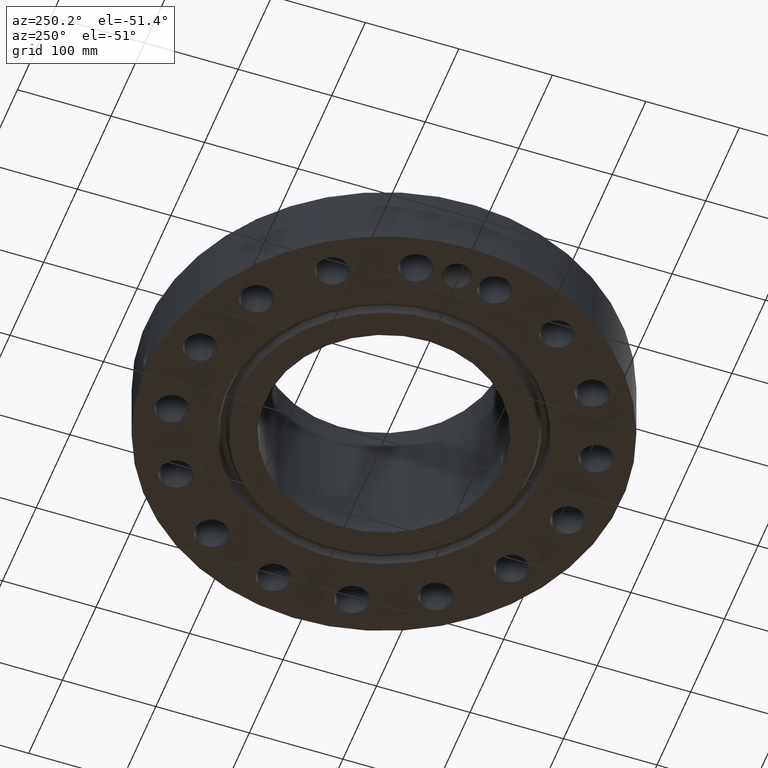
[diagram: clean part render]
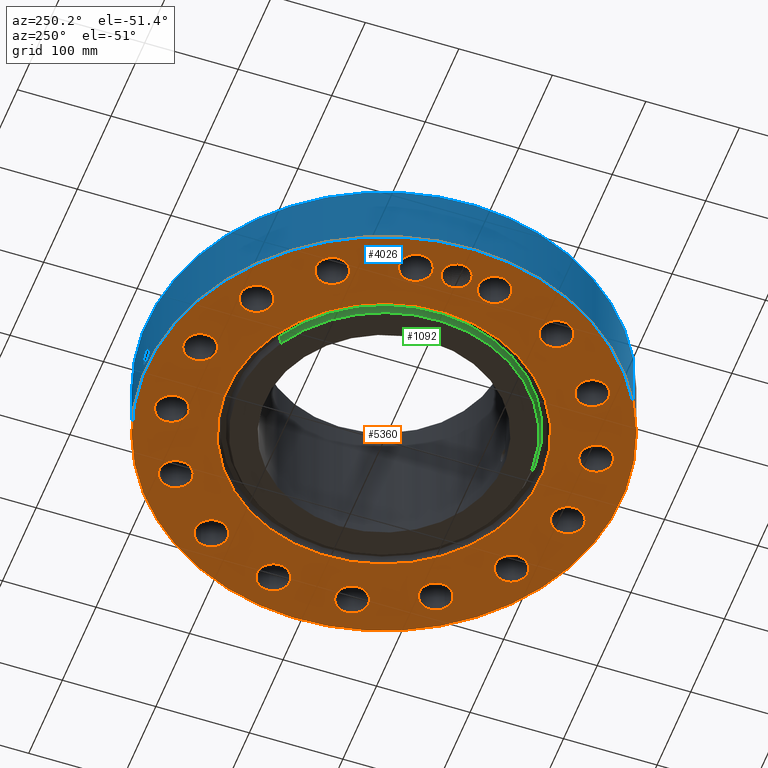
[diagram: same view with three faces highlighted in distinct colors, each labeled with its STEP entity id]
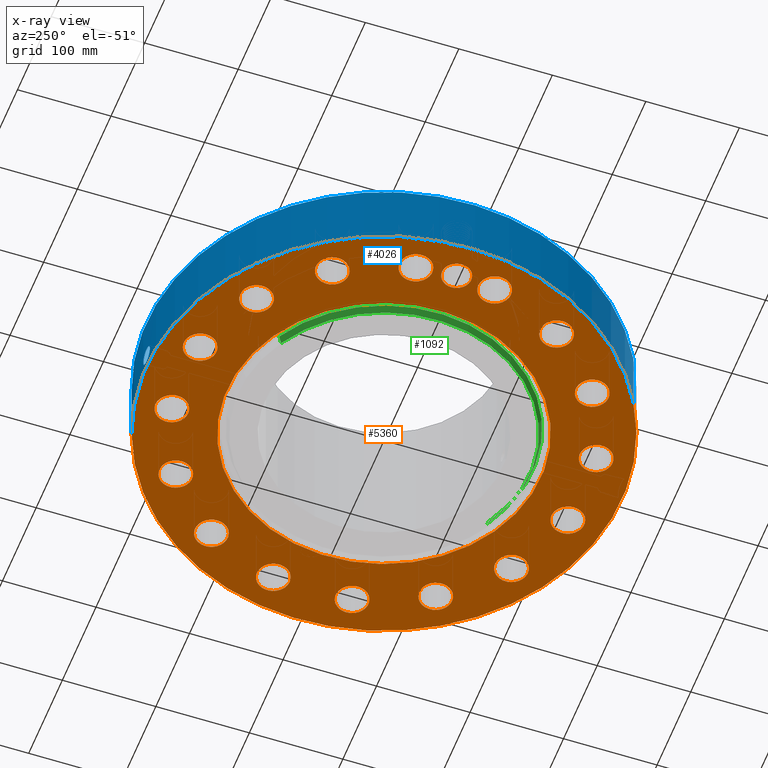
[diagram: x-ray of the same camera — body ghosted, the three highlighted faces saturated]
A machine part, auxiliary view with three faces highlighted in distinct colors.
The next image is the same camera in x-ray (body ghosted, the three faces saturated) — at least one of them is partly hidden behind the body in this view.
Their STEP definitions:

[orange] entity #5360 — the highlighted planar face has unit normal (0, 0, -1).
#598=AXIS2_PLACEMENT_3D('Plane Axis2P3D',#595,#596,#597) ;
#3617=AXIS2_PLACEMENT_3D('Circle Axis2P3D',#3615,#3616,$) ;
#3643=AXIS2_PLACEMENT_3D('Circle Axis2P3D',#3641,#3642,$) ;
#3916=AXIS2_PLACEMENT_3D('Circle Axis2P3D',#3914,#3915,$) ;
#4029=AXIS2_PLACEMENT_3D('Circle Axis2P3D',#4027,#4028,$) ;
#4271=AXIS2_PLACEMENT_3D('Circle Axis2P3D',#4269,#4270,$) ;
#4290=AXIS2_PLACEMENT_3D('Circle Axis2P3D',#4288,#4289,$) ;
#4314=AXIS2_PLACEMENT_3D('Circle Axis2P3D',#4312,#4313,$) ;
#4333=AXIS2_PLACEMENT_3D('Circle Axis2P3D',#4331,#4332,$) ;
#4357=AXIS2_PLACEMENT_3D('Circle Axis2P3D',#4355,#4356,$) ;
#4376=AXIS2_PLACEMENT_3D('Circle Axis2P3D',#4374,#4375,$) ;
#4400=AXIS2_PLACEMENT_3D('Circle Axis2P3D',#4398,#4399,$) ;
#4419=AXIS2_PLACEMENT_3D('Circle Axis2P3D',#4417,#4418,$) ;
#4443=AXIS2_PLACEMENT_3D('Circle Axis2P3D',#4441,#4442,$) ;
#4462=AXIS2_PLACEMENT_3D('Circle Axis2P3D',#4460,#4461,$) ;
#4486=AXIS2_PLACEMENT_3D('Circle Axis2P3D',#4484,#4485,$) ;
#4505=AXIS2_PLACEMENT_3D('Circle Axis2P3D',#4503,#4504,$) ;
#4529=AXIS2_PLACEMENT_3D('Circle Axis2P3D',#4527,#4528,$) ;
#4548=AXIS2_PLACEMENT_3D('Circle Axis2P3D',#4546,#4547,$) ;
#4572=AXIS2_PLACEMENT_3D('Circle Axis2P3D',#4570,#4571,$) ;
#4591=AXIS2_PLACEMENT_3D('Circle Axis2P3D',#4589,#4590,$) ;
#4615=AXIS2_PLACEMENT_3D('Circle Axis2P3D',#4613,#4614,$) ;
#4634=AXIS2_PLACEMENT_3D('Circle Axis2P3D',#4632,#4633,$) ;
#4658=AXIS2_PLACEMENT_3D('Circle Axis2P3D',#4656,#4657,$) ;
#4677=AXIS2_PLACEMENT_3D('Circle Axis2P3D',#4675,#4676,$) ;
#4701=AXIS2_PLACEMENT_3D('Circle Axis2P3D',#4699,#4700,$) ;
#4720=AXIS2_PLACEMENT_3D('Circle Axis2P3D',#4718,#4719,$) ;
#4744=AXIS2_PLACEMENT_3D('Circle Axis2P3D',#4742,#4743,$) ;
#4763=AXIS2_PLACEMENT_3D('Circle Axis2P3D',#4761,#4762,$) ;
#4787=AXIS2_PLACEMENT_3D('Circle Axis2P3D',#4785,#4786,$) ;
#4806=AXIS2_PLACEMENT_3D('Circle Axis2P3D',#4804,#4805,$) ;
#4830=AXIS2_PLACEMENT_3D('Circle Axis2P3D',#4828,#4829,$) ;
#4849=AXIS2_PLACEMENT_3D('Circle Axis2P3D',#4847,#4848,$) ;
#4873=AXIS2_PLACEMENT_3D('Circle Axis2P3D',#4871,#4872,$) ;
#4892=AXIS2_PLACEMENT_3D('Circle Axis2P3D',#4890,#4891,$) ;
#4916=AXIS2_PLACEMENT_3D('Circle Axis2P3D',#4914,#4915,$) ;
#4935=AXIS2_PLACEMENT_3D('Circle Axis2P3D',#4933,#4934,$) ;
#5246=AXIS2_PLACEMENT_3D('Circle Axis2P3D',#5244,#5245,$) ;
#5255=AXIS2_PLACEMENT_3D('Circle Axis2P3D',#5253,#5254,$) ;
#5262=AXIS2_PLACEMENT_3D('Circle Axis2P3D',#5260,#5261,$) ;
#595=CARTESIAN_POINT('Axis2P3D Location',(0.,5.01000000002,0.)) ;
#3615=CARTESIAN_POINT('Axis2P3D Location',(0.,0.,0.)) ;
#3619=CARTESIAN_POINT('Vertex',(-3.16876309742,5.80038194284,0.)) ;
#3621=CARTESIAN_POINT('Vertex',(3.16876309742,-5.80038194284,-3.84644197508E-016)) ;
#3641=CARTESIAN_POINT('Axis2P3D Location',(0.,0.,0.)) ;
#3914=CARTESIAN_POINT('Axis2P3D Location',(0.,0.,1.1189649382E-015)) ;
#3918=CARTESIAN_POINT('Vertex',(-4.79425538606,-8.77582561894,1.1189649382E-015)) ;
#3920=CARTESIAN_POINT('Vertex',(4.79425538606,8.77582561894,1.1189649382E-015)) ;
#4027=CARTESIAN_POINT('Axis2P3D Location',(0.,0.,1.1189649382E-015)) ;
#4266=CARTESIAN_POINT('Vertex',(8.94220685117,-1.98907135878,0.)) ;
#4269=CARTESIAN_POINT('Axis2P3D Location',(8.33667488346,-1.65826773714,0.)) ;
#4273=CARTESIAN_POINT('Vertex',(7.73114291575,-1.32746411551,0.)) ;
#4288=CARTESIAN_POINT('Axis2P3D Location',(8.33667488346,-1.65826773714,0.)) ;
#4309=CARTESIAN_POINT('Vertex',(6.63464617872,-4.18499723356,0.)) ;
#4312=CARTESIAN_POINT('Axis2P3D Location',(7.0674917046,-4.72234698069,0.)) ;
#4316=CARTESIAN_POINT('Vertex',(7.50033723048,-5.25969672781,0.)) ;
#4331=CARTESIAN_POINT('Axis2P3D Location',(7.0674917046,-4.72234698069,0.)) ;
#4352=CARTESIAN_POINT('Vertex',(4.5280847042,-6.40540245991,0.)) ;
#4355=CARTESIAN_POINT('Axis2P3D Location',(4.72234698069,-7.0674917046,0.)) ;
#4359=CARTESIAN_POINT('Vertex',(4.91660925717,-7.72958094929,0.)) ;
#4374=CARTESIAN_POINT('Axis2P3D Location',(4.72234698069,-7.0674917046,0.)) ;
#4395=CARTESIAN_POINT('Vertex',(1.73216338065,-7.65064322685,0.)) ;
#4398=CARTESIAN_POINT('Axis2P3D Location',(1.65826773714,-8.33667488346,0.)) ;
#4402=CARTESIAN_POINT('Vertex',(1.58437209364,-9.02270654007,0.)) ;
#4417=CARTESIAN_POINT('Axis2P3D Location',(1.65826773714,-8.33667488346,0.)) ;
#4438=CARTESIAN_POINT('Vertex',(-1.32746411551,-7.73114291575,0.)) ;
#4441=CARTESIAN_POINT('Axis2P3D Location',(-1.65826773714,-8.33667488346,0.)) ;
#4445=CARTESIAN_POINT('Vertex',(-1.98907135878,-8.94220685117,0.)) ;
#4460=CARTESIAN_POINT('Axis2P3D Location',(-1.65826773714,-8.33667488346,0.)) ;
#4481=CARTESIAN_POINT('Vertex',(-4.18499723356,-6.63464617872,0.)) ;
#4484=CARTESIAN_POINT('Axis2P3D Location',(-4.72234698069,-7.0674917046,0.)) ;
#4488=CARTESIAN_POINT('Vertex',(-5.25969672781,-7.50033723048,0.)) ;
#4503=CARTESIAN_POINT('Axis2P3D Location',(-4.72234698069,-7.0674917046,0.)) ;
#4524=CARTESIAN_POINT('Vertex',(-6.40540245991,-4.5280847042,0.)) ;
#4527=CARTESIAN_POINT('Axis2P3D Location',(-7.0674917046,-4.72234698069,0.)) ;
#4531=CARTESIAN_POINT('Vertex',(-7.72958094929,-4.91660925717,0.)) ;
#4546=CARTESIAN_POINT('Axis2P3D Location',(-7.0674917046,-4.72234698069,0.)) ;
#4567=CARTESIAN_POINT('Vertex',(-7.65064322685,-1.73216338065,0.)) ;
#4570=CARTESIAN_POINT('Axis2P3D Location',(-8.33667488346,-1.65826773714,0.)) ;
#4574=CARTESIAN_POINT('Vertex',(-9.02270654007,-1.58437209364,0.)) ;
#4589=CARTESIAN_POINT('Axis2P3D Location',(-8.33667488346,-1.65826773714,0.)) ;
#4610=CARTESIAN_POINT('Vertex',(-7.73114291575,1.32746411551,0.)) ;
#4613=CARTESIAN_POINT('Axis2P3D Location',(-8.33667488346,1.65826773714,0.)) ;
#4617=CARTESIAN_POINT('Vertex',(-8.94220685117,1.98907135878,0.)) ;
#4632=CARTESIAN_POINT('Axis2P3D Location',(-8.33667488346,1.65826773714,0.)) ;
#4653=CARTESIAN_POINT('Vertex',(-6.63464617872,4.18499723356,0.)) ;
#4656=CARTESIAN_POINT('Axis2P3D Location',(-7.0674917046,4.72234698069,0.)) ;
#4660=CARTESIAN_POINT('Vertex',(-7.50033723048,5.25969672781,0.)) ;
#4675=CARTESIAN_POINT('Axis2P3D Location',(-7.0674917046,4.72234698069,0.)) ;
#4696=CARTESIAN_POINT('Vertex',(-4.5280847042,6.40540245991,0.)) ;
#4699=CARTESIAN_POINT('Axis2P3D Location',(-4.72234698069,7.0674917046,0.)) ;
#4703=CARTESIAN_POINT('Vertex',(-4.91660925717,7.72958094929,0.)) ;
#4718=CARTESIAN_POINT('Axis2P3D Location',(-4.72234698069,7.0674917046,0.)) ;
#4739=CARTESIAN_POINT('Vertex',(-1.73216338065,7.65064322685,0.)) ;
#4742=CARTESIAN_POINT('Axis2P3D Location',(-1.65826773714,8.33667488346,0.)) ;
#4746=CARTESIAN_POINT('Vertex',(-1.58437209364,9.02270654007,0.)) ;
#4761=CARTESIAN_POINT('Axis2P3D Location',(-1.65826773714,8.33667488346,0.)) ;
#4782=CARTESIAN_POINT('Vertex',(1.32746411551,7.73114291575,0.)) ;
#4785=CARTESIAN_POINT('Axis2P3D Location',(1.65826773714,8.33667488346,0.)) ;
#4789=CARTESIAN_POINT('Vertex',(1.98907135878,8.94220685117,0.)) ;
#4804=CARTESIAN_POINT('Axis2P3D Location',(1.65826773714,8.33667488346,0.)) ;
#4825=CARTESIAN_POINT('Vertex',(4.18499723356,6.63464617872,0.)) ;
#4828=CARTESIAN_POINT('Axis2P3D Location',(4.72234698069,7.0674917046,-2.23792987641E-015)) ;
#4832=CARTESIAN_POINT('Vertex',(5.25969672781,7.50033723048,-2.23792987641E-015)) ;
#4847=CARTESIAN_POINT('Axis2P3D Location',(4.72234698069,7.0674917046,-2.23792987641E-015)) ;
#4868=CARTESIAN_POINT('Vertex',(6.40540245991,4.5280847042,0.)) ;
#4871=CARTESIAN_POINT('Axis2P3D Location',(7.0674917046,4.72234698069,0.)) ;
#4875=CARTESIAN_POINT('Vertex',(7.72958094929,4.91660925717,0.)) ;
#4890=CARTESIAN_POINT('Axis2P3D Location',(7.0674917046,4.72234698069,0.)) ;
#4911=CARTESIAN_POINT('Vertex',(7.65064322685,1.73216338065,0.)) ;
#4914=CARTESIAN_POINT('Axis2P3D Location',(8.33667488346,1.65826773714,0.)) ;
#4918=CARTESIAN_POINT('Vertex',(9.02270654007,1.58437209364,0.)) ;
#4933=CARTESIAN_POINT('Axis2P3D Location',(8.33667488346,1.65826773714,0.)) ;
#5244=CARTESIAN_POINT('Axis2P3D Location',(-8.50000000003,3.35689481461E-015,0.)) ;
#5248=CARTESIAN_POINT('Vertex',(-9.03945000083,0.294702878581,0.)) ;
#5250=CARTESIAN_POINT('Vertex',(-8.98379130489,0.379212425102,0.)) ;
#5253=CARTESIAN_POINT('Axis2P3D Location',(-8.50000000003,3.35689481461E-015,0.)) ;
#5257=CARTESIAN_POINT('Vertex',(-7.96054999924,-0.294702878581,0.)) ;
#5260=CARTESIAN_POINT('Axis2P3D Location',(-8.50000000003,3.35689481461E-015,0.)) ;
#5264=CARTESIAN_POINT('Vertex',(-8.49843966911,0.614698019657,0.)) ;
#5268=CARTESIAN_POINT('Control Point',(-8.77282856421,0.562309885633,0.)) ;
#5269=CARTESIAN_POINT('Control Point',(-8.72109257815,0.585133894593,0.)) ;
#5270=CARTESIAN_POINT('Control Point',(-8.66686954557,0.602063440444,0.)) ;
#5271=CARTESIAN_POINT('Control Point',(-8.61103537302,0.612720508488,0.)) ;
#5272=CARTESIAN_POINT('Control Point',(-8.55456750742,0.616917362455,0.)) ;
#5273=CARTESIAN_POINT('Control Point',(-8.49843966911,0.614698019657,0.)) ;
#5274=CARTESIAN_POINT('Vertex',(-8.77282856421,0.562309885645,-4.9173263886E-018)) ;
#5278=CARTESIAN_POINT('Control Point',(-8.77282856421,0.562309885645,0.)) ;
#5279=CARTESIAN_POINT('Control Point',(-8.82279170483,0.535782028235,0.)) ;
#5280=CARTESIAN_POINT('Control Point',(-8.86965058737,0.503654698179,0.)) ;
#5281=CARTESIAN_POINT('Control Point',(-8.91257103613,0.466390296498,0.)) ;
#5282=CARTESIAN_POINT('Control Point',(-8.95080606794,0.424647313326,0.)) ;
#5283=CARTESIAN_POINT('Control Point',(-8.98379130489,0.379212425102,0.)) ;
#596=DIRECTION('Axis2P3D Direction',(0.,0.,-0.0393700787402)) ;
#597=DIRECTION('Axis2P3D XDirection',(0.0393700787402,0.,0.)) ;
#3616=DIRECTION('Axis2P3D Direction',(0.,0.,-0.0393700787402)) ;
#3642=DIRECTION('Axis2P3D Direction',(0.,0.,-0.0393700787402)) ;
#3915=DIRECTION('Axis2P3D Direction',(0.,0.,-0.0393700787402)) ;
#4028=DIRECTION('Axis2P3D Direction',(0.,0.,-0.0393700787402)) ;
#4270=DIRECTION('Axis2P3D Direction',(0.,-0.,-0.0393700787402)) ;
#4289=DIRECTION('Axis2P3D Direction',(0.,-0.,-0.0393700787402)) ;
#4313=DIRECTION('Axis2P3D Direction',(0.,-0.,-0.0393700787402)) ;
#4332=DIRECTION('Axis2P3D Direction',(0.,-0.,-0.0393700787402)) ;
#4356=DIRECTION('Axis2P3D Direction',(0.,-0.,-0.0393700787402)) ;
#4375=DIRECTION('Axis2P3D Direction',(0.,-0.,-0.0393700787402)) ;
#4399=DIRECTION('Axis2P3D Direction',(0.,-0.,-0.0393700787402)) ;
#4418=DIRECTION('Axis2P3D Direction',(0.,-0.,-0.0393700787402)) ;
#4442=DIRECTION('Axis2P3D Direction',(0.,-0.,-0.0393700787402)) ;
#4461=DIRECTION('Axis2P3D Direction',(0.,-0.,-0.0393700787402)) ;
#4485=DIRECTION('Axis2P3D Direction',(-0.,0.,-0.0393700787402)) ;
#4504=DIRECTION('Axis2P3D Direction',(-0.,0.,-0.0393700787402)) ;
#4528=DIRECTION('Axis2P3D Direction',(-0.,0.,-0.0393700787402)) ;
#4547=DIRECTION('Axis2P3D Direction',(-0.,0.,-0.0393700787402)) ;
#4571=DIRECTION('Axis2P3D Direction',(-0.,0.,-0.0393700787402)) ;
#4590=DIRECTION('Axis2P3D Direction',(-0.,0.,-0.0393700787402)) ;
#4614=DIRECTION('Axis2P3D Direction',(-0.,0.,-0.0393700787402)) ;
#4633=DIRECTION('Axis2P3D Direction',(-0.,0.,-0.0393700787402)) ;
#4657=DIRECTION('Axis2P3D Direction',(0.,0.,-0.0393700787402)) ;
#4676=DIRECTION('Axis2P3D Direction',(0.,0.,-0.0393700787402)) ;
#4700=DIRECTION('Axis2P3D Direction',(0.,0.,-0.0393700787402)) ;
#4719=DIRECTION('Axis2P3D Direction',(0.,0.,-0.0393700787402)) ;
#4743=DIRECTION('Axis2P3D Direction',(0.,0.,-0.0393700787402)) ;
#4762=DIRECTION('Axis2P3D Direction',(0.,0.,-0.0393700787402)) ;
#4786=DIRECTION('Axis2P3D Direction',(0.,0.,-0.0393700787402)) ;
#4805=DIRECTION('Axis2P3D Direction',(0.,0.,-0.0393700787402)) ;
#4829=DIRECTION('Axis2P3D Direction',(0.,0.,-0.0393700787402)) ;
#4848=DIRECTION('Axis2P3D Direction',(0.,0.,-0.0393700787402)) ;
#4872=DIRECTION('Axis2P3D Direction',(0.,0.,-0.0393700787402)) ;
#4891=DIRECTION('Axis2P3D Direction',(0.,0.,-0.0393700787402)) ;
#4915=DIRECTION('Axis2P3D Direction',(0.,0.,-0.0393700787402)) ;
#4934=DIRECTION('Axis2P3D Direction',(0.,0.,-0.0393700787402)) ;
#5245=DIRECTION('Axis2P3D Direction',(0.,0.,-0.0393700787402)) ;
#5254=DIRECTION('Axis2P3D Direction',(0.,0.,-0.0393700787402)) ;
#5261=DIRECTION('Axis2P3D Direction',(0.,0.,-0.0393700787402)) ;
#5241=ORIENTED_EDGE('',*,*,#3922,.T.) ;
#5242=ORIENTED_EDGE('',*,*,#4031,.T.) ;
#5286=ORIENTED_EDGE('',*,*,#5252,.F.) ;
#5287=ORIENTED_EDGE('',*,*,#5259,.F.) ;
#5288=ORIENTED_EDGE('',*,*,#5266,.F.) ;
#5289=ORIENTED_EDGE('',*,*,#5276,.F.) ;
#5290=ORIENTED_EDGE('',*,*,#5284,.T.) ;
#5293=ORIENTED_EDGE('',*,*,#4275,.F.) ;
#5294=ORIENTED_EDGE('',*,*,#4292,.F.) ;
#5297=ORIENTED_EDGE('',*,*,#4318,.F.) ;
#5298=ORIENTED_EDGE('',*,*,#4335,.F.) ;
#5301=ORIENTED_EDGE('',*,*,#4361,.F.) ;
#5302=ORIENTED_EDGE('',*,*,#4378,.F.) ;
#5305=ORIENTED_EDGE('',*,*,#4404,.F.) ;
#5306=ORIENTED_EDGE('',*,*,#4421,.F.) ;
#5309=ORIENTED_EDGE('',*,*,#4447,.F.) ;
#5310=ORIENTED_EDGE('',*,*,#4464,.F.) ;
#5313=ORIENTED_EDGE('',*,*,#4490,.F.) ;
#5314=ORIENTED_EDGE('',*,*,#4507,.F.) ;
#5317=ORIENTED_EDGE('',*,*,#4533,.F.) ;
#5318=ORIENTED_EDGE('',*,*,#4550,.F.) ;
#5321=ORIENTED_EDGE('',*,*,#4576,.F.) ;
#5322=ORIENTED_EDGE('',*,*,#4593,.F.) ;
#5325=ORIENTED_EDGE('',*,*,#4619,.F.) ;
#5326=ORIENTED_EDGE('',*,*,#4636,.F.) ;
#5329=ORIENTED_EDGE('',*,*,#4662,.F.) ;
#5330=ORIENTED_EDGE('',*,*,#4679,.F.) ;
#5333=ORIENTED_EDGE('',*,*,#4705,.F.) ;
#5334=ORIENTED_EDGE('',*,*,#4722,.F.) ;
#5337=ORIENTED_EDGE('',*,*,#4748,.F.) ;
#5338=ORIENTED_EDGE('',*,*,#4765,.F.) ;
#5341=ORIENTED_EDGE('',*,*,#4791,.F.) ;
#5342=ORIENTED_EDGE('',*,*,#4808,.F.) ;
#5345=ORIENTED_EDGE('',*,*,#4834,.F.) ;
#5346=ORIENTED_EDGE('',*,*,#4851,.F.) ;
#5349=ORIENTED_EDGE('',*,*,#4877,.F.) ;
#5350=ORIENTED_EDGE('',*,*,#4894,.F.) ;
#5353=ORIENTED_EDGE('',*,*,#4920,.F.) ;
#5354=ORIENTED_EDGE('',*,*,#4937,.F.) ;
#5357=ORIENTED_EDGE('',*,*,#3645,.F.) ;
#5358=ORIENTED_EDGE('',*,*,#3623,.F.) ;
#5291=FACE_BOUND('',#5285,.T.) ;
#5295=FACE_BOUND('',#5292,.T.) ;
#5299=FACE_BOUND('',#5296,.T.) ;
#5303=FACE_BOUND('',#5300,.T.) ;
#5307=FACE_BOUND('',#5304,.T.) ;
#5311=FACE_BOUND('',#5308,.T.) ;
#5315=FACE_BOUND('',#5312,.T.) ;
#5319=FACE_BOUND('',#5316,.T.) ;
#5323=FACE_BOUND('',#5320,.T.) ;
#5327=FACE_BOUND('',#5324,.T.) ;
#5331=FACE_BOUND('',#5328,.T.) ;
#5335=FACE_BOUND('',#5332,.T.) ;
#5339=FACE_BOUND('',#5336,.T.) ;
#5343=FACE_BOUND('',#5340,.T.) ;
#5347=FACE_BOUND('',#5344,.T.) ;
#5351=FACE_BOUND('',#5348,.T.) ;
#5355=FACE_BOUND('',#5352,.T.) ;
#5359=FACE_BOUND('',#5356,.T.) ;
#5360=ADVANCED_FACE('PartBody',(#5243,#5291,#5295,#5299,#5303,#5307,#5311,#5315,#5319,#5323,#5327,#5331,#5335,#5339,#5343,#5347,#5351,#5355,#5359),#599,.T.) ;
#5267=B_SPLINE_CURVE_WITH_KNOTS('',5,(#5268,#5269,#5270,#5271,#5272,#5273),.UNSPECIFIED.,.F.,.U.,(6,6),(0.,9.90710048058),.UNSPECIFIED.) ;
#5277=B_SPLINE_CURVE_WITH_KNOTS('',5,(#5278,#5279,#5280,#5281,#5282,#5283),.UNSPECIFIED.,.F.,.U.,(6,6),(0.,9.91094508225),.UNSPECIFIED.) ;
#3618=CIRCLE('generated circle',#3617,6.60950000003) ;
#3644=CIRCLE('generated circle',#3643,6.60950000003) ;
#3917=CIRCLE('generated circle',#3916,10.) ;
#4030=CIRCLE('generated circle',#4029,10.) ;
#4272=CIRCLE('generated circle',#4271,0.690000000003) ;
#4291=CIRCLE('generated circle',#4290,0.690000000003) ;
#4315=CIRCLE('generated circle',#4314,0.690000000003) ;
#4334=CIRCLE('generated circle',#4333,0.690000000003) ;
#4358=CIRCLE('generated circle',#4357,0.690000000003) ;
#4377=CIRCLE('generated circle',#4376,0.690000000003) ;
#4401=CIRCLE('generated circle',#4400,0.690000000003) ;
#4420=CIRCLE('generated circle',#4419,0.690000000003) ;
#4444=CIRCLE('generated circle',#4443,0.690000000003) ;
#4463=CIRCLE('generated circle',#4462,0.690000000003) ;
#4487=CIRCLE('generated circle',#4486,0.690000000003) ;
#4506=CIRCLE('generated circle',#4505,0.690000000003) ;
#4530=CIRCLE('generated circle',#4529,0.690000000003) ;
#4549=CIRCLE('generated circle',#4548,0.690000000003) ;
#4573=CIRCLE('generated circle',#4572,0.690000000003) ;
#4592=CIRCLE('generated circle',#4591,0.690000000003) ;
#4616=CIRCLE('generated circle',#4615,0.690000000003) ;
#4635=CIRCLE('generated circle',#4634,0.690000000003) ;
#4659=CIRCLE('generated circle',#4658,0.690000000003) ;
#4678=CIRCLE('generated circle',#4677,0.690000000003) ;
#4702=CIRCLE('generated circle',#4701,0.690000000003) ;
#4721=CIRCLE('generated circle',#4720,0.690000000003) ;
#4745=CIRCLE('generated circle',#4744,0.690000000003) ;
#4764=CIRCLE('generated circle',#4763,0.690000000003) ;
#4788=CIRCLE('generated circle',#4787,0.690000000003) ;
#4807=CIRCLE('generated circle',#4806,0.690000000003) ;
#4831=CIRCLE('generated circle',#4830,0.690000000003) ;
#4850=CIRCLE('generated circle',#4849,0.690000000003) ;
#4874=CIRCLE('generated circle',#4873,0.690000000003) ;
#4893=CIRCLE('generated circle',#4892,0.690000000003) ;
#4917=CIRCLE('generated circle',#4916,0.690000000003) ;
#4936=CIRCLE('generated circle',#4935,0.690000000003) ;
#5247=CIRCLE('generated circle',#5246,0.614700000002) ;
#5256=CIRCLE('generated circle',#5255,0.614700000002) ;
#5263=CIRCLE('generated circle',#5262,0.614700000002) ;
#3623=EDGE_CURVE('',#3620,#3622,#3618,.T.) ;
#3645=EDGE_CURVE('',#3622,#3620,#3644,.T.) ;
#3922=EDGE_CURVE('',#3919,#3921,#3917,.T.) ;
#4031=EDGE_CURVE('',#3921,#3919,#4030,.T.) ;
#4275=EDGE_CURVE('',#4267,#4274,#4272,.T.) ;
#4292=EDGE_CURVE('',#4274,#4267,#4291,.T.) ;
#4318=EDGE_CURVE('',#4310,#4317,#4315,.T.) ;
#4335=EDGE_CURVE('',#4317,#4310,#4334,.T.) ;
#4361=EDGE_CURVE('',#4353,#4360,#4358,.T.) ;
#4378=EDGE_CURVE('',#4360,#4353,#4377,.T.) ;
#4404=EDGE_CURVE('',#4396,#4403,#4401,.T.) ;
#4421=EDGE_CURVE('',#4403,#4396,#4420,.T.) ;
#4447=EDGE_CURVE('',#4439,#4446,#4444,.T.) ;
#4464=EDGE_CURVE('',#4446,#4439,#4463,.T.) ;
#4490=EDGE_CURVE('',#4482,#4489,#4487,.T.) ;
#4507=EDGE_CURVE('',#4489,#4482,#4506,.T.) ;
#4533=EDGE_CURVE('',#4525,#4532,#4530,.T.) ;
#4550=EDGE_CURVE('',#4532,#4525,#4549,.T.) ;
#4576=EDGE_CURVE('',#4568,#4575,#4573,.T.) ;
#4593=EDGE_CURVE('',#4575,#4568,#4592,.T.) ;
#4619=EDGE_CURVE('',#4611,#4618,#4616,.T.) ;
#4636=EDGE_CURVE('',#4618,#4611,#4635,.T.) ;
#4662=EDGE_CURVE('',#4654,#4661,#4659,.T.) ;
#4679=EDGE_CURVE('',#4661,#4654,#4678,.T.) ;
#4705=EDGE_CURVE('',#4697,#4704,#4702,.T.) ;
#4722=EDGE_CURVE('',#4704,#4697,#4721,.T.) ;
#4748=EDGE_CURVE('',#4740,#4747,#4745,.T.) ;
#4765=EDGE_CURVE('',#4747,#4740,#4764,.T.) ;
#4791=EDGE_CURVE('',#4783,#4790,#4788,.T.) ;
#4808=EDGE_CURVE('',#4790,#4783,#4807,.T.) ;
#4834=EDGE_CURVE('',#4826,#4833,#4831,.T.) ;
#4851=EDGE_CURVE('',#4833,#4826,#4850,.T.) ;
#4877=EDGE_CURVE('',#4869,#4876,#4874,.T.) ;
#4894=EDGE_CURVE('',#4876,#4869,#4893,.T.) ;
#4920=EDGE_CURVE('',#4912,#4919,#4917,.T.) ;
#4937=EDGE_CURVE('',#4919,#4912,#4936,.T.) ;
#5252=EDGE_CURVE('',#5249,#5251,#5247,.T.) ;
#5259=EDGE_CURVE('',#5258,#5249,#5256,.T.) ;
#5266=EDGE_CURVE('',#5265,#5258,#5263,.T.) ;
#5276=EDGE_CURVE('',#5275,#5265,#5267,.T.) ;
#5284=EDGE_CURVE('',#5275,#5251,#5277,.T.) ;
#5240=EDGE_LOOP('',(#5241,#5242)) ;
#5285=EDGE_LOOP('',(#5286,#5287,#5288,#5289,#5290)) ;
#5292=EDGE_LOOP('',(#5293,#5294)) ;
#5296=EDGE_LOOP('',(#5297,#5298)) ;
#5300=EDGE_LOOP('',(#5301,#5302)) ;
#5304=EDGE_LOOP('',(#5305,#5306)) ;
#5308=EDGE_LOOP('',(#5309,#5310)) ;
#5312=EDGE_LOOP('',(#5313,#5314)) ;
#5316=EDGE_LOOP('',(#5317,#5318)) ;
#5320=EDGE_LOOP('',(#5321,#5322)) ;
#5324=EDGE_LOOP('',(#5325,#5326)) ;
#5328=EDGE_LOOP('',(#5329,#5330)) ;
#5332=EDGE_LOOP('',(#5333,#5334)) ;
#5336=EDGE_LOOP('',(#5337,#5338)) ;
#5340=EDGE_LOOP('',(#5341,#5342)) ;
#5344=EDGE_LOOP('',(#5345,#5346)) ;
#5348=EDGE_LOOP('',(#5349,#5350)) ;
#5352=EDGE_LOOP('',(#5353,#5354)) ;
#5356=EDGE_LOOP('',(#5357,#5358)) ;
#5243=FACE_OUTER_BOUND('',#5240,.T.) ;
#599=PLANE('',#598) ;
#3620=VERTEX_POINT('',#3619) ;
#3622=VERTEX_POINT('',#3621) ;
#3919=VERTEX_POINT('',#3918) ;
#3921=VERTEX_POINT('',#3920) ;
#4267=VERTEX_POINT('',#4266) ;
#4274=VERTEX_POINT('',#4273) ;
#4310=VERTEX_POINT('',#4309) ;
#4317=VERTEX_POINT('',#4316) ;
#4353=VERTEX_POINT('',#4352) ;
#4360=VERTEX_POINT('',#4359) ;
#4396=VERTEX_POINT('',#4395) ;
#4403=VERTEX_POINT('',#4402) ;
#4439=VERTEX_POINT('',#4438) ;
#4446=VERTEX_POINT('',#4445) ;
#4482=VERTEX_POINT('',#4481) ;
#4489=VERTEX_POINT('',#4488) ;
#4525=VERTEX_POINT('',#4524) ;
#4532=VERTEX_POINT('',#4531) ;
#4568=VERTEX_POINT('',#4567) ;
#4575=VERTEX_POINT('',#4574) ;
#4611=VERTEX_POINT('',#4610) ;
#4618=VERTEX_POINT('',#4617) ;
#4654=VERTEX_POINT('',#4653) ;
#4661=VERTEX_POINT('',#4660) ;
#4697=VERTEX_POINT('',#4696) ;
#4704=VERTEX_POINT('',#4703) ;
#4740=VERTEX_POINT('',#4739) ;
#4747=VERTEX_POINT('',#4746) ;
#4783=VERTEX_POINT('',#4782) ;
#4790=VERTEX_POINT('',#4789) ;
#4826=VERTEX_POINT('',#4825) ;
#4833=VERTEX_POINT('',#4832) ;
#4869=VERTEX_POINT('',#4868) ;
#4876=VERTEX_POINT('',#4875) ;
#4912=VERTEX_POINT('',#4911) ;
#4919=VERTEX_POINT('',#4918) ;
#5249=VERTEX_POINT('',#5248) ;
#5251=VERTEX_POINT('',#5250) ;
#5258=VERTEX_POINT('',#5257) ;
#5265=VERTEX_POINT('',#5264) ;
#5275=VERTEX_POINT('',#5274) ;

[blue] entity #4026 — the highlighted cylindrical surface (partial cylindrical patch) has radius 254 mm, axis along (0, 0, -1).
#2927=AXIS2_PLACEMENT_3D('Circle Axis2P3D',#2925,#2926,$) ;
#3912=AXIS2_PLACEMENT_3D('Cylinder Axis2P3D',#3909,#3910,#3911) ;
#3916=AXIS2_PLACEMENT_3D('Circle Axis2P3D',#3914,#3915,$) ;
#2920=CARTESIAN_POINT('Vertex',(4.79425538606,8.77582561894,2.81200000001)) ;
#2922=CARTESIAN_POINT('Vertex',(-4.79425538606,-8.77582561894,2.81200000001)) ;
#2925=CARTESIAN_POINT('Axis2P3D Location',(0.,0.,2.81200000001)) ;
#3909=CARTESIAN_POINT('Axis2P3D Location',(0.,0.,3.15600000001)) ;
#3914=CARTESIAN_POINT('Axis2P3D Location',(0.,0.,1.1189649382E-015)) ;
#3918=CARTESIAN_POINT('Vertex',(-4.79425538606,-8.77582561894,1.1189649382E-015)) ;
#3920=CARTESIAN_POINT('Vertex',(4.79425538606,8.77582561894,1.1189649382E-015)) ;
#3923=CARTESIAN_POINT('Line Origine',(-4.79425538606,-8.77582561894,1.40600000001)) ;
#3928=CARTESIAN_POINT('Line Origine',(4.79425538606,8.77582561894,1.40600000001)) ;
#3940=CARTESIAN_POINT('Control Point',(-0.0572119803634,9.99983633817,1.09946159713)) ;
#3941=CARTESIAN_POINT('Control Point',(-0.0385450855311,9.99994313692,1.102521105)) ;
#3942=CARTESIAN_POINT('Control Point',(-0.0196321788622,9.99999861985,1.10408017438)) ;
#3943=CARTESIAN_POINT('Control Point',(-0.000716082856406,9.9999999744,1.10411849925)) ;
#3944=CARTESIAN_POINT('Vertex',(-0.0571990708879,9.99983667007,1.09946399465)) ;
#3946=CARTESIAN_POINT('Vertex',(-0.000715973833986,9.99999997441,1.10411850972)) ;
#3950=CARTESIAN_POINT('Control Point',(-0.0571989729021,9.99983641258,1.09946342361)) ;
#3951=CARTESIAN_POINT('Control Point',(-0.096925033472,9.99960917987,1.09475689508)) ;
#3952=CARTESIAN_POINT('Control Point',(-0.135932987569,9.99914034756,1.08280858566)) ;
#3953=CARTESIAN_POINT('Control Point',(-0.171781099398,9.99852445387,1.06447443216)) ;
#3954=CARTESIAN_POINT('Vertex',(-0.171781099398,9.99852445387,1.06447443216)) ;
#3958=CARTESIAN_POINT('Control Point',(-0.0304791948593,9.99995355087,0.341149440529)) ;
#3959=CARTESIAN_POINT('Control Point',(-0.0869241455633,9.9997815104,0.348316768002)) ;
#3960=CARTESIAN_POINT('Control Point',(-0.141782076206,9.99921604746,0.365924095968)) ;
#3961=CARTESIAN_POINT('Control Point',(-0.192346208923,9.99830847053,0.393484612388)) ;
#3962=CARTESIAN_POINT('Control Point',(-0.265759602692,9.99658103264,0.452901902856)) ;
#3963=CARTESIAN_POINT('Control Point',(-0.317976377577,9.9949715303,0.529378481026)) ;
#3964=CARTESIAN_POINT('Control Point',(-0.335086742124,9.99439872606,0.5620476691)) ;
#3965=CARTESIAN_POINT('Control Point',(-0.369056290246,9.9932108602,0.650252291492)) ;
#3966=CARTESIAN_POINT('Control Point',(-0.376110288274,9.99291610857,0.744477151106)) ;
#3967=CARTESIAN_POINT('Control Point',(-0.369959764796,9.99316024017,0.802001471648)) ;
#3968=CARTESIAN_POINT('Control Point',(-0.340413357694,9.99427827323,0.901203468634)) ;
#3969=CARTESIAN_POINT('Control Point',(-0.280678283746,9.99611879722,0.984359052287)) ;
#3970=CARTESIAN_POINT('Control Point',(-0.248537274177,9.99700573283,1.0170289448)) ;
#3971=CARTESIAN_POINT('Control Point',(-0.211772291135,9.9978373794,1.0440213413)) ;
#3972=CARTESIAN_POINT('Control Point',(-0.171781099398,9.99852445387,1.06447443216)) ;
#3973=CARTESIAN_POINT('Vertex',(-0.0304791948593,9.99995355087,0.341149440529)) ;
#3977=CARTESIAN_POINT('Control Point',(-0.0304791948593,9.99995355087,0.341149440529)) ;
#3978=CARTESIAN_POINT('Control Point',(-0.0203138845361,9.99998453406,0.340868869535)) ;
#3979=CARTESIAN_POINT('Control Point',(-0.0101428499982,10.0000000028,0.340944106366)) ;
#3980=CARTESIAN_POINT('Control Point',(2.72878354152E-006,10.,0.341374667805)) ;
#3981=CARTESIAN_POINT('Vertex',(2.72878353638E-006,10.,0.341374667805)) ;
#3985=CARTESIAN_POINT('Control Point',(0.193088684827,9.99813566424,0.39656383507)) ;
#3986=CARTESIAN_POINT('Control Point',(0.1491846568,9.99898355942,0.371543029261)) ;
#3987=CARTESIAN_POINT('Control Point',(0.101153368029,9.99965493059,0.353607200514)) ;
#3988=CARTESIAN_POINT('Control Point',(0.050818551375,9.99999998617,0.343531206833)) ;
#3989=CARTESIAN_POINT('Control Point',(2.72878354153E-006,10.,0.341374667805)) ;
#3990=CARTESIAN_POINT('Vertex',(0.193088684827,9.99813566424,0.39656383507)) ;
#3994=CARTESIAN_POINT('Control Point',(0.193088684827,9.99813566424,0.39656383507)) ;
#3995=CARTESIAN_POINT('Control Point',(0.22200236233,9.99757726974,0.413041671876)) ;
#3996=CARTESIAN_POINT('Control Point',(0.249242443845,9.99694663795,0.432399683881)) ;
#3997=CARTESIAN_POINT('Control Point',(0.274404297305,9.9962756448,0.454458252201)) ;
#3998=CARTESIAN_POINT('Control Point',(0.341053053622,9.99430729957,0.526427927688)) ;
#3999=CARTESIAN_POINT('Control Point',(0.383384375958,9.9926835308,0.616296260523)) ;
#4000=CARTESIAN_POINT('Control Point',(0.398208487033,9.99205522805,0.680788173325)) ;
#4001=CARTESIAN_POINT('Control Point',(0.398820880235,9.9920728059,0.807725413414)) ;
#4002=CARTESIAN_POINT('Control Point',(0.349108821628,9.99395183051,0.922787706512)) ;
#4003=CARTESIAN_POINT('Control Point',(0.314057483133,9.99519357389,0.972480029602)) ;
#4004=CARTESIAN_POINT('Control Point',(0.235623931739,9.99747709475,1.04687430536)) ;
#4005=CARTESIAN_POINT('Control Point',(0.138518402521,9.99918909691,1.08948513188)) ;
#4006=CARTESIAN_POINT('Control Point',(0.0927588534243,9.99973433429,1.10155493203)) ;
#4007=CARTESIAN_POINT('Control Point',(0.0460962092374,10.0000001193,1.10641422469)) ;
#4008=CARTESIAN_POINT('Control Point',(-2.58579355305E-005,10.,1.10415298432)) ;
#4009=CARTESIAN_POINT('Vertex',(-2.58579355397E-005,10.,1.10415298432)) ;
#4013=CARTESIAN_POINT('Control Point',(-0.000715973824045,9.99999997441,1.1041185097)) ;
#4014=CARTESIAN_POINT('Control Point',(-0.000370940047061,9.99999999911,1.10413606587)) ;
#4015=CARTESIAN_POINT('Control Point',(-2.5857941095E-005,10.,1.10415298431)) ;
#2926=DIRECTION('Axis2P3D Direction',(0.,0.,-0.0393700787402)) ;
#3910=DIRECTION('Axis2P3D Direction',(0.,0.,-0.0393700787402)) ;
#3911=DIRECTION('Axis2P3D XDirection',(0.0188750212049,0.0345504945626,0.)) ;
#3915=DIRECTION('Axis2P3D Direction',(0.,0.,-0.0393700787402)) ;
#3924=DIRECTION('Vector Direction',(0.,0.,-0.0393700787402)) ;
#3929=DIRECTION('Vector Direction',(0.,0.,-0.0393700787402)) ;
#3925=VECTOR('Line Direction',#3924,0.0393700787402) ;
#3930=VECTOR('Line Direction',#3929,0.0393700787402) ;
#3934=ORIENTED_EDGE('',*,*,#3922,.F.) ;
#3935=ORIENTED_EDGE('',*,*,#3927,.T.) ;
#3936=ORIENTED_EDGE('',*,*,#2929,.T.) ;
#3937=ORIENTED_EDGE('',*,*,#3932,.F.) ;
#4018=ORIENTED_EDGE('',*,*,#3948,.F.) ;
#4019=ORIENTED_EDGE('',*,*,#3956,.T.) ;
#4020=ORIENTED_EDGE('',*,*,#3975,.F.) ;
#4021=ORIENTED_EDGE('',*,*,#3983,.T.) ;
#4022=ORIENTED_EDGE('',*,*,#3992,.F.) ;
#4023=ORIENTED_EDGE('',*,*,#4011,.T.) ;
#4024=ORIENTED_EDGE('',*,*,#4016,.F.) ;
#4025=FACE_BOUND('',#4017,.T.) ;
#4026=ADVANCED_FACE('PartBody',(#3938,#4025),#3913,.T.) ;
#3939=B_SPLINE_CURVE_WITH_KNOTS('',3,(#3940,#3941,#3942,#3943),.UNSPECIFIED.,.F.,.U.,(4,4),(4.42272723026,6.52129607436),.UNSPECIFIED.) ;
#3949=B_SPLINE_CURVE_WITH_KNOTS('',3,(#3950,#3951,#3952,#3953),.UNSPECIFIED.,.F.,.U.,(4,4),(0.,4.49490140019),.UNSPECIFIED.) ;
#3957=B_SPLINE_CURVE_WITH_KNOTS('',5,(#3958,#3959,#3960,#3961,#3962,#3963,#3964,#3965,#3966,#3967,#3968,#3969,#3970,#3971,#3972),.UNSPECIFIED.,.F.,.U.,(6,3,3,3,6),(0.,9.88848123751,16.459083646,26.8430241094,35.2003432048),.UNSPECIFIED.) ;
#3976=B_SPLINE_CURVE_WITH_KNOTS('',3,(#3977,#3978,#3979,#3980),.UNSPECIFIED.,.F.,.U.,(4,4),(0.,1.06033163712),.UNSPECIFIED.) ;
#3984=B_SPLINE_CURVE_WITH_KNOTS('',4,(#3985,#3986,#3987,#3988,#3989),.UNSPECIFIED.,.F.,.U.,(5,5),(0.,7.08113035016),.UNSPECIFIED.) ;
#3993=B_SPLINE_CURVE_WITH_KNOTS('',5,(#3994,#3995,#3996,#3997,#3998,#3999,#4000,#4001,#4002,#4003,#4004,#4005,#4006,#4007,#4008),.UNSPECIFIED.,.F.,.U.,(6,3,3,3,6),(0.,5.82923484939,17.1276645658,27.7869737091,36.4081447275),.UNSPECIFIED.) ;
#4012=B_SPLINE_CURVE_WITH_KNOTS('',2,(#4013,#4014,#4015),.UNSPECIFIED.,.F.,.U.,(3,3),(1.03893929527,1.06474049784),.UNSPECIFIED.) ;
#2928=CIRCLE('generated circle',#2927,10.) ;
#3917=CIRCLE('generated circle',#3916,10.) ;
#3913=CYLINDRICAL_SURFACE('generated cylinder',#3912,10.) ;
#2929=EDGE_CURVE('',#2923,#2921,#2928,.T.) ;
#3922=EDGE_CURVE('',#3919,#3921,#3917,.T.) ;
#3927=EDGE_CURVE('',#3919,#2923,#3926,.F.) ;
#3932=EDGE_CURVE('',#3921,#2921,#3931,.F.) ;
#3948=EDGE_CURVE('',#3945,#3947,#3939,.T.) ;
#3956=EDGE_CURVE('',#3945,#3955,#3949,.T.) ;
#3975=EDGE_CURVE('',#3974,#3955,#3957,.T.) ;
#3983=EDGE_CURVE('',#3974,#3982,#3976,.T.) ;
#3992=EDGE_CURVE('',#3991,#3982,#3984,.T.) ;
#4011=EDGE_CURVE('',#3991,#4010,#3993,.T.) ;
#4016=EDGE_CURVE('',#3947,#4010,#4012,.T.) ;
#3933=EDGE_LOOP('',(#3934,#3935,#3936,#3937)) ;
#4017=EDGE_LOOP('',(#4018,#4019,#4020,#4021,#4022,#4023,#4024)) ;
#3938=FACE_OUTER_BOUND('',#3933,.T.) ;
#3926=LINE('Line',#3923,#3925) ;
#3931=LINE('Line',#3928,#3930) ;
#2921=VERTEX_POINT('',#2920) ;
#2923=VERTEX_POINT('',#2922) ;
#3919=VERTEX_POINT('',#3918) ;
#3921=VERTEX_POINT('',#3920) ;
#3945=VERTEX_POINT('',#3944) ;
#3947=VERTEX_POINT('',#3946) ;
#3955=VERTEX_POINT('',#3954) ;
#3974=VERTEX_POINT('',#3973) ;
#3982=VERTEX_POINT('',#3981) ;
#3991=VERTEX_POINT('',#3990) ;
#4010=VERTEX_POINT('',#4009) ;

[green] entity #1092 — the highlighted conical surface has half-angle 23 deg.
#611=AXIS2_PLACEMENT_3D('Circle Axis2P3D',#609,#610,$) ;
#1053=AXIS2_PLACEMENT_3D('Cone Axis2P3D',#1050,#1051,#1052) ;
#1083=AXIS2_PLACEMENT_3D('Circle Axis2P3D',#1081,#1082,$) ;
#604=CARTESIAN_POINT('Vertex',(-2.94391251981,5.38879572131,0.)) ;
#606=CARTESIAN_POINT('Vertex',(2.94391251981,-5.38879572131,0.)) ;
#609=CARTESIAN_POINT('Axis2P3D Location',(5.59482469102E-016,5.59482469102E-016,0.)) ;
#1050=CARTESIAN_POINT('Axis2P3D Location',(0.,0.,-0.0600000000002)) ;
#1055=CARTESIAN_POINT('Line Origine',(-2.97379932392,5.44350314927,0.146860966928)) ;
#1059=CARTESIAN_POINT('Vertex',(-3.00368612803,5.49821057724,0.293721933856)) ;
#1066=CARTESIAN_POINT('Vertex',(3.00368612803,-5.49821057724,0.293721933856)) ;
#1069=CARTESIAN_POINT('Line Origine',(2.97379932392,-5.44350314927,0.146860966928)) ;
#1081=CARTESIAN_POINT('Axis2P3D Location',(0.,0.,0.293721933856)) ;
#610=DIRECTION('Axis2P3D Direction',(0.,0.,-0.0393700787402)) ;
#1051=DIRECTION('Axis2P3D Direction',(0.,0.,0.0393700787402)) ;
#1052=DIRECTION('Axis2P3D XDirection',(-0.0188750212049,0.0345504945626,0.)) ;
#1056=DIRECTION('Vector Direction',(-0.00737505833565,0.0134999537303,0.0362403485611)) ;
#1070=DIRECTION('Vector Direction',(0.00737505833565,-0.0134999537303,0.0362403485611)) ;
#1082=DIRECTION('Axis2P3D Direction',(0.,0.,0.0393700787402)) ;
#1057=VECTOR('Line Direction',#1056,0.0393700787402) ;
#1071=VECTOR('Line Direction',#1070,0.0393700787402) ;
#1087=ORIENTED_EDGE('',*,*,#1073,.F.) ;
#1088=ORIENTED_EDGE('',*,*,#1085,.F.) ;
#1089=ORIENTED_EDGE('',*,*,#1061,.T.) ;
#1090=ORIENTED_EDGE('',*,*,#613,.F.) ;
#1092=ADVANCED_FACE('PartBody',(#1091),#1054,.T.) ;
#612=CIRCLE('generated circle',#611,6.14050000002) ;
#1084=CIRCLE('generated circle',#1083,6.26517756391) ;
#1054=CONICAL_SURFACE('Cone',#1053,6.11503151105,0.401425727959) ;
#613=EDGE_CURVE('',#607,#605,#612,.T.) ;
#1061=EDGE_CURVE('',#1060,#605,#1058,.F.) ;
#1073=EDGE_CURVE('',#1067,#607,#1072,.F.) ;
#1085=EDGE_CURVE('',#1060,#1067,#1084,.T.) ;
#1086=EDGE_LOOP('',(#1087,#1088,#1089,#1090)) ;
#1091=FACE_OUTER_BOUND('',#1086,.T.) ;
#1058=LINE('Line',#1055,#1057) ;
#1072=LINE('Line',#1069,#1071) ;
#605=VERTEX_POINT('',#604) ;
#607=VERTEX_POINT('',#606) ;
#1060=VERTEX_POINT('',#1059) ;
#1067=VERTEX_POINT('',#1066) ;